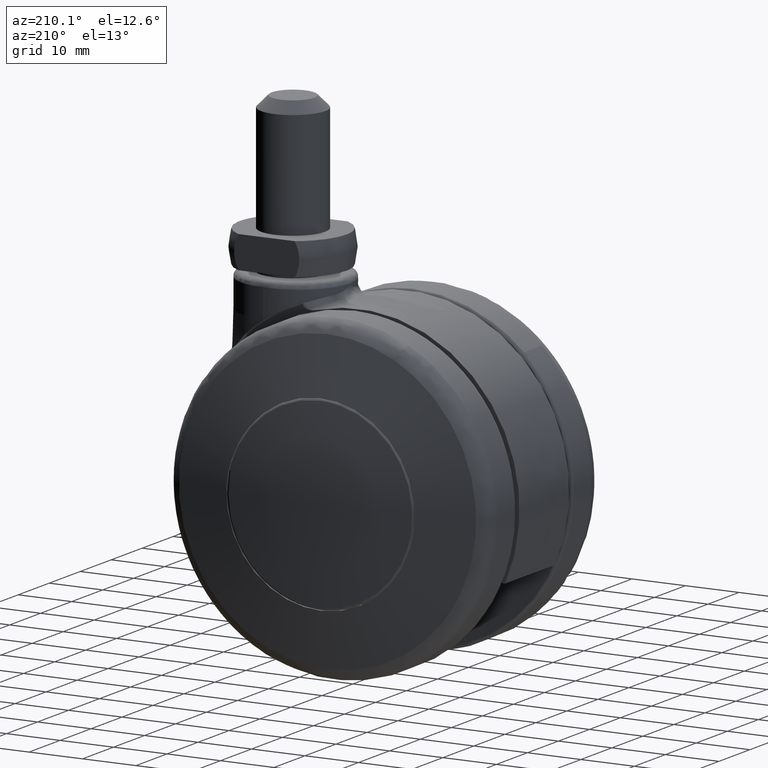
[diagram: clean part render]
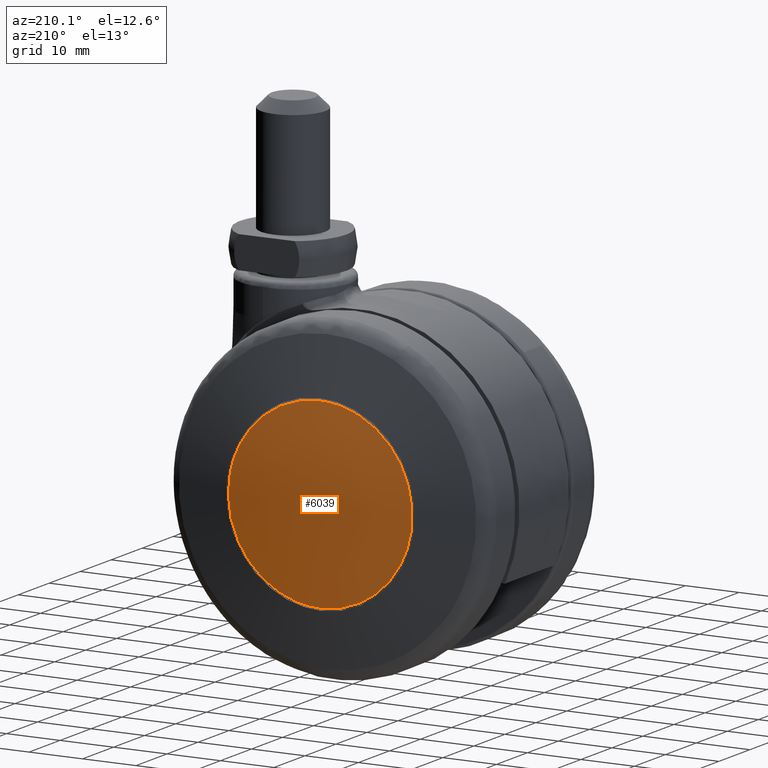
[diagram: same view with one face highlighted and labeled with its STEP entity id]
A machine part, auxiliary view. The second image highlights one B-rep face of the part: STEP entity #6039.
In plain terms, the highlighted face is a freeform B-spline surface patch.
Its self-contained STEP definition (entity closure, byte-faithful):
#3889=CARTESIAN_POINT('',(16.766259925430312,20.570792996148231,3.759584996789783));
#3890=VERTEX_POINT('',#3889);
#3904=CARTESIAN_POINT('',(0.0,20.570793001334899,17.182606035498392));
#3905=VERTEX_POINT('',#3904);
#3906=CARTESIAN_POINT('',(0.0,20.570793001334899,17.182606035498392));
#3907=CARTESIAN_POINT('',(13.756346607242977,20.570793001334902,17.182606035498395));
#3908=CARTESIAN_POINT('',(16.766259925430315,20.570792996148231,3.759584996789783));
#3916=(BOUNDED_CURVE()B_SPLINE_CURVE(2,(#3906,#3907,#3908),.UNSPECIFIED.,.F.,.U.)B_SPLINE_CURVE_WITH_KNOTS((3,3),(0.500000000000000,0.712563823270184),.UNSPECIFIED.)CURVE()GEOMETRIC_REPRESENTATION_ITEM()RATIONAL_B_SPLINE_CURVE((1.0,0.750965990396407,0.925416950437962))REPRESENTATION_ITEM(''));
#3917=EDGE_CURVE('',#3905,#3890,#3916,.T.);
#3919=CARTESIAN_POINT('',(-16.953835887423828,20.570792996683991,-2.794530341142734));
#3920=VERTEX_POINT('',#3919);
#3921=CARTESIAN_POINT('',(-16.953835887423832,20.570792996683988,-2.794530341142734));
#3922=CARTESIAN_POINT('',(-17.182606035498399,20.570793001334906,-1.406629137905501));
#3923=CARTESIAN_POINT('',(-17.182606035498399,20.570793001334899,-6.674309E-015));
#3924=CARTESIAN_POINT('',(-17.182606035498406,20.570793001334902,17.182606035498392));
#3925=CARTESIAN_POINT('',(0.0,20.570793001334899,17.182606035498392));
#3933=(BOUNDED_CURVE()B_SPLINE_CURVE(2,(#3921,#3922,#3923,#3924,#3925),.UNSPECIFIED.,.F.,.U.)B_SPLINE_CURVE_WITH_KNOTS((3,2,3),(0.222006108792550,0.250000000000000,0.500000000000000),.UNSPECIFIED.)CURVE()GEOMETRIC_REPRESENTATION_ITEM()RATIONAL_B_SPLINE_CURVE((0.941751131911191,0.967203116388546,1.0,0.707106781186547,1.0))REPRESENTATION_ITEM(''));
#3934=EDGE_CURVE('',#3920,#3905,#3933,.T.);
#3987=CARTESIAN_POINT('',(0.0,20.570793001334899,-17.182606035498409));
#3988=VERTEX_POINT('',#3987);
#3989=CARTESIAN_POINT('',(0.0,20.570793001334899,-17.182606035498409));
#3990=CARTESIAN_POINT('',(-14.582224245798646,20.570793001334913,-17.182606035498409));
#3991=CARTESIAN_POINT('',(-16.953835887423828,20.570792996683991,-2.794530341142734));
#3999=(BOUNDED_CURVE()B_SPLINE_CURVE(2,(#3989,#3990,#3991),.UNSPECIFIED.,.F.,.U.)B_SPLINE_CURVE_WITH_KNOTS((3,3),(0.0,0.222006108792551),.UNSPECIFIED.)CURVE()GEOMETRIC_REPRESENTATION_ITEM()RATIONAL_B_SPLINE_CURVE((1.0,0.739903664798001,0.941751131911192))REPRESENTATION_ITEM(''));
#4000=EDGE_CURVE('',#3988,#3920,#3999,.T.);
#4002=CARTESIAN_POINT('',(16.766259925430312,20.570792996148228,3.759584996789782));
#4003=CARTESIAN_POINT('',(17.182606035498402,20.570793001334906,1.902846117996730));
#4004=CARTESIAN_POINT('',(17.182606035498399,20.570793001334899,-6.674309E-015));
#4005=CARTESIAN_POINT('',(17.182606035498406,20.570793001334902,-17.182606035498406));
#4006=CARTESIAN_POINT('',(0.0,20.570793001334899,-17.182606035498409));
#4014=(BOUNDED_CURVE()B_SPLINE_CURVE(2,(#4002,#4003,#4004,#4005,#4006),.UNSPECIFIED.,.F.,.U.)B_SPLINE_CURVE_WITH_KNOTS((3,2,3),(0.712563823270184,0.750000000000000,1.0),.UNSPECIFIED.)CURVE()GEOMETRIC_REPRESENTATION_ITEM()RATIONAL_B_SPLINE_CURVE((0.925416950437962,0.956140790790140,1.0,0.707106781186547,1.0))REPRESENTATION_ITEM(''));
#4015=EDGE_CURVE('',#3890,#3988,#4014,.T.);
#6009=CARTESIAN_POINT('',(-18.715564547404242,18.575539122692668,18.716607633539429));
#6010=CARTESIAN_POINT('',(-9.435446895219734,20.273462740208750,18.871945533635429));
#6011=CARTESIAN_POINT('',(9.434451282487983,20.273462740208750,18.871945533635429));
#6012=CARTESIAN_POINT('',(18.713622217286613,18.575894479315817,18.716640144042863));
#6013=CARTESIAN_POINT('',(-18.870911248761679,20.273653579338777,9.435981496465322));
#6014=CARTESIAN_POINT('',(-9.514420331618423,21.999999999999972,9.514950604691773));
#6015=CARTESIAN_POINT('',(9.513416385740436,21.999999999999972,9.514950604691773));
#6016=CARTESIAN_POINT('',(18.868953068570804,20.274014859655388,9.435998022687450));
#6017=CARTESIAN_POINT('',(-18.870911248761679,20.273653579338777,-9.435981096600825));
#6018=CARTESIAN_POINT('',(-9.514420331618423,21.999999999999972,-9.514950201480836));
#6019=CARTESIAN_POINT('',(9.513416385740436,21.999999999999972,-9.514950201480836));
#6020=CARTESIAN_POINT('',(18.868953068570804,20.274014859655388,-9.435997622822253));
#6021=CARTESIAN_POINT('',(-18.715564560461971,18.575539265428421,-18.716606853452298));
#6022=CARTESIAN_POINT('',(-9.435446901857418,20.273462885323593,-18.871944747183264));
#6023=CARTESIAN_POINT('',(9.434451289124969,20.273462885323593,-18.871944747183264));
#6024=CARTESIAN_POINT('',(18.713622230343027,18.575894622052093,-18.716639363954421));
#6032=(BOUNDED_SURFACE()B_SPLINE_SURFACE(2,2,((#6009,#6013,#6017,#6021),(#6010,#6014,#6018,#6022),(#6011,#6015,#6019,#6023),(#6012,#6016,#6020,#6024)),.UNSPECIFIED.,.F.,.F.,.U.)B_SPLINE_SURFACE_WITH_KNOTS((3,1,3),(3,1,3),(29.891274740409852,48.390443240193051,66.887659738349910),(29.890243714809419,48.390443240193051,66.890641981601718),.UNSPECIFIED.)GEOMETRIC_REPRESENTATION_ITEM()RATIONAL_B_SPLINE_SURFACE(((1.016738801281634,1.008368934196833,1.008368934196833,1.016738800572262),(1.008369867084801,1.0,1.0,1.008369866375429),(1.008369867084801,1.0,1.0,1.008369866375429),(1.016737035222660,1.008367168137858,1.008367168137858,1.016737034513287)))REPRESENTATION_ITEM('')SURFACE());
#6033=ORIENTED_EDGE('',*,*,#4000,.T.);
#6034=ORIENTED_EDGE('',*,*,#3934,.T.);
#6035=ORIENTED_EDGE('',*,*,#3917,.T.);
#6036=ORIENTED_EDGE('',*,*,#4015,.T.);
#6037=EDGE_LOOP('',(#6033,#6034,#6035,#6036));
#6038=FACE_OUTER_BOUND('',#6037,.T.);
#6039=ADVANCED_FACE('',(#6038),#6032,.T.);